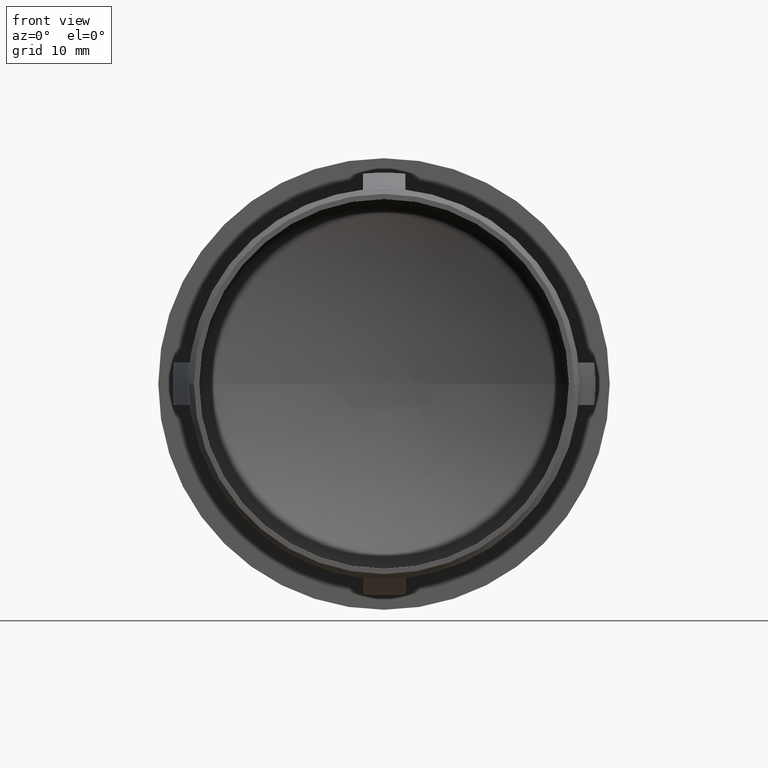
[diagram: clean part render]
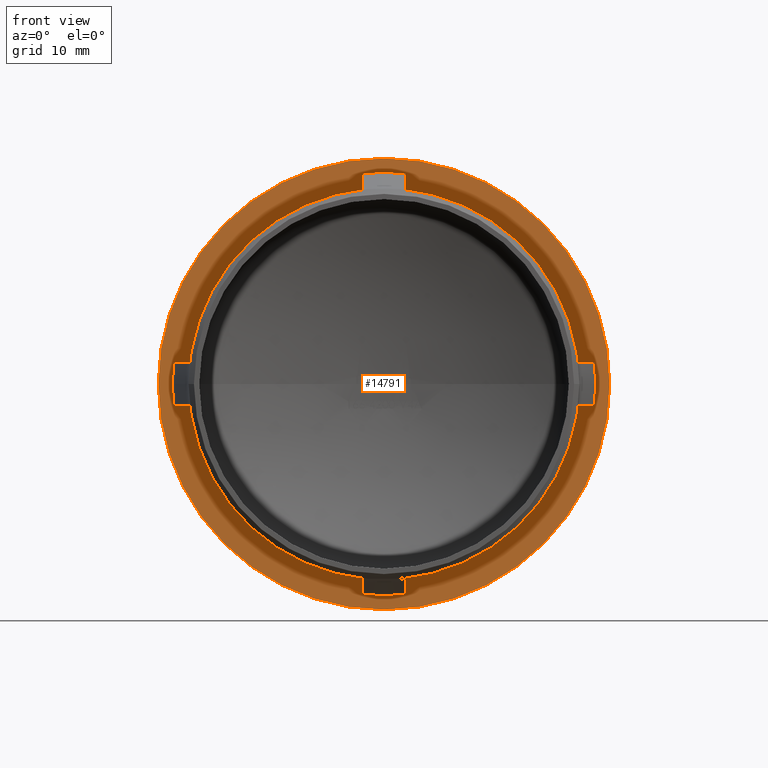
[diagram: same view with one face highlighted and labeled with its STEP entity id]
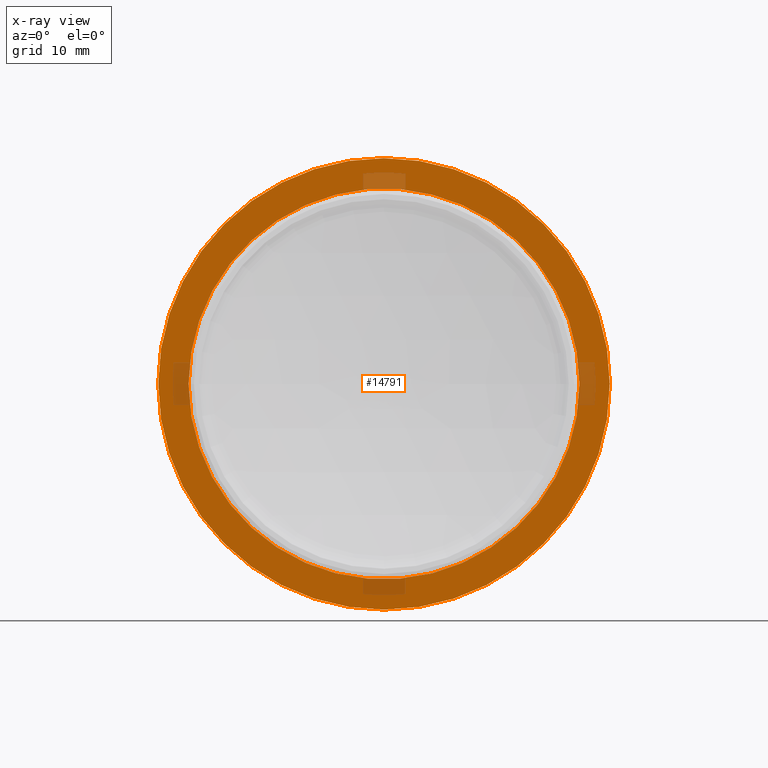
[diagram: x-ray of the same camera — body ghosted, the highlighted face saturated]
A machine part, front view. The second image highlights one B-rep face of the part: STEP entity #14791.
The next image is the same camera in x-ray: the body ghosted, the highlighted face saturated — about 7% of this face is hidden behind the body in this view.
In plain terms, the highlighted planar face has unit normal (0, -1, -0).
Its self-contained STEP definition (entity closure, byte-faithful):
#778 = FACE_BOUND ( 'NONE', #5924, .T. ) ;
#870 = DIRECTION ( 'NONE',  ( 1.421951005676655478E-15, -1.000000000000000000, -0.000000000000000000 ) ) ;
#1019 = EDGE_CURVE ( 'NONE', #15142, #8686, #3934, .T. ) ;
#1559 = CIRCLE ( 'NONE', #9670, 21.19999999999998863 ) ;
#1580 = CIRCLE ( 'NONE', #10381, 18.34999999999999076 ) ;
#1852 = DIRECTION ( 'NONE',  ( 1.000000000000000000, 1.421951005676655281E-15, 0.000000000000000000 ) ) ;
#1867 = VERTEX_POINT ( 'NONE', #5138 ) ;
#1928 = ORIENTED_EDGE ( 'NONE', *, *, #9553, .T. ) ;
#2225 = CARTESIAN_POINT ( 'NONE',  ( 1.066463254257493768E-14, 25.99999999999997513, 0.000000000000000000 ) ) ;
#2262 = CARTESIAN_POINT ( 'NONE',  ( -18.34999999999998010, 25.99999999999994671, 2.247226876435394544E-15 ) ) ;
#2983 = AXIS2_PLACEMENT_3D ( 'NONE', #13863, #5454, #6562 ) ;
#3430 = DIRECTION ( 'NONE',  ( 1.000000000000000000, 1.512565428644628179E-15, 0.000000000000000000 ) ) ;
#3934 = CIRCLE ( 'NONE', #10893, 18.34999999999999076 ) ;
#4379 = DIRECTION ( 'NONE',  ( 1.000000000000000000, 1.472878422999176657E-15, 0.000000000000000000 ) ) ;
#4384 = DIRECTION ( 'NONE',  ( 1.000000000000000000, 1.512565428644628179E-15, 0.000000000000000000 ) ) ;
#5138 = CARTESIAN_POINT ( 'NONE',  ( -21.19999999999997797, 25.99999999999993605, 2.596251214192387586E-15 ) ) ;
#5454 = DIRECTION ( 'NONE',  ( 1.421951005676655478E-15, -1.000000000000000000, -0.000000000000000000 ) ) ;
#5924 = EDGE_LOOP ( 'NONE', ( #14059, #6363 ) ) ;
#6363 = ORIENTED_EDGE ( 'NONE', *, *, #1019, .F. ) ;
#6562 = DIRECTION ( 'NONE',  ( 1.000000000000000000, 1.472878422999176657E-15, 0.000000000000000000 ) ) ;
#7270 = FACE_OUTER_BOUND ( 'NONE', #10727, .T. ) ;
#7295 = EDGE_CURVE ( 'NONE', #11270, #1867, #1559, .T. ) ;
#7799 = CARTESIAN_POINT ( 'NONE',  ( 21.19999999999999929, 26.00000000000000000, 0.000000000000000000 ) ) ;
#7971 = DIRECTION ( 'NONE',  ( 1.421951005676655281E-15, -1.000000000000000000, -0.000000000000000000 ) ) ;
#8540 = EDGE_CURVE ( 'NONE', #8686, #15142, #1580, .T. ) ;
#8686 = VERTEX_POINT ( 'NONE', #11917 ) ;
#9022 = CARTESIAN_POINT ( 'NONE',  ( 18.35000000000000142, 25.99999999999999645, 0.000000000000000000 ) ) ;
#9317 = CARTESIAN_POINT ( 'NONE',  ( 1.066463254257494399E-14, 25.99999999999996803, 0.000000000000000000 ) ) ;
#9323 = ORIENTED_EDGE ( 'NONE', *, *, #7295, .T. ) ;
#9553 = EDGE_CURVE ( 'NONE', #1867, #11270, #9994, .T. ) ;
#9670 = AXIS2_PLACEMENT_3D ( 'NONE', #9317, #10471, #4379 ) ;
#9994 = CIRCLE ( 'NONE', #2983, 21.19999999999998863 ) ;
#10381 = AXIS2_PLACEMENT_3D ( 'NONE', #13876, #870, #4384 ) ;
#10471 = DIRECTION ( 'NONE',  ( 1.421951005676655478E-15, -1.000000000000000000, -0.000000000000000000 ) ) ;
#10727 = EDGE_LOOP ( 'NONE', ( #9323, #1928 ) ) ;
#10893 = AXIS2_PLACEMENT_3D ( 'NONE', #2225, #15314, #3430 ) ;
#11270 = VERTEX_POINT ( 'NONE', #7799 ) ;
#11917 = CARTESIAN_POINT ( 'NONE',  ( 18.35000000000000142, 26.00000000000000355, 0.000000000000000000 ) ) ;
#12462 = AXIS2_PLACEMENT_3D ( 'NONE', #9022, #7971, #1852 ) ;
#13863 = CARTESIAN_POINT ( 'NONE',  ( 1.066463254257494399E-14, 25.99999999999996803, 0.000000000000000000 ) ) ;
#13876 = CARTESIAN_POINT ( 'NONE',  ( 1.066463254257493768E-14, 25.99999999999997513, 0.000000000000000000 ) ) ;
#14059 = ORIENTED_EDGE ( 'NONE', *, *, #8540, .F. ) ;
#14791 = ADVANCED_FACE ( 'NONE', ( #778, #7270 ), #15054, .T. ) ;
#15054 = PLANE ( 'NONE',  #12462 ) ;
#15142 = VERTEX_POINT ( 'NONE', #2262 ) ;
#15314 = DIRECTION ( 'NONE',  ( 1.421951005676655478E-15, -1.000000000000000000, -0.000000000000000000 ) ) ;